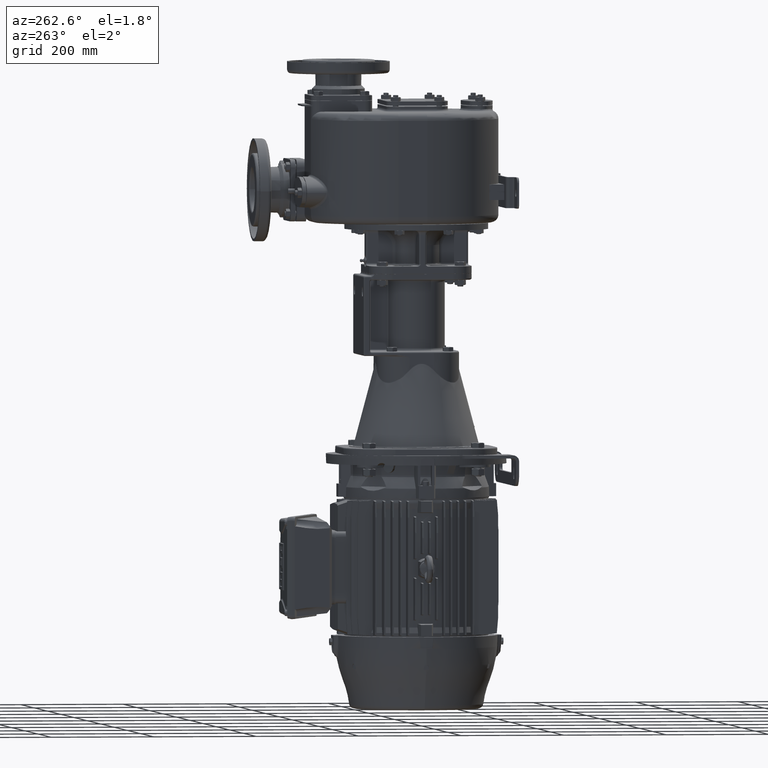
[diagram: clean part render]
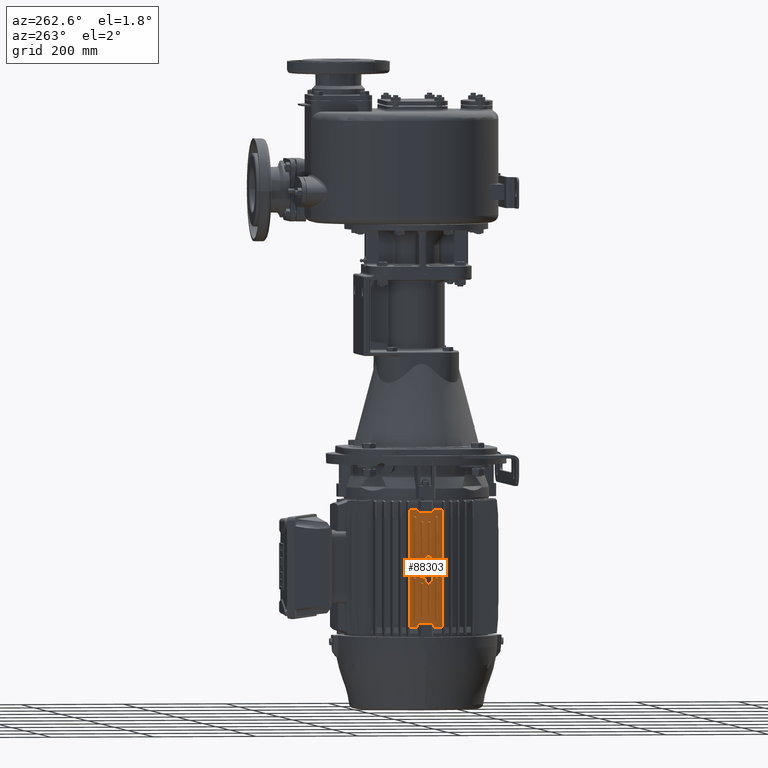
[diagram: same view with one face highlighted and labeled with its STEP entity id]
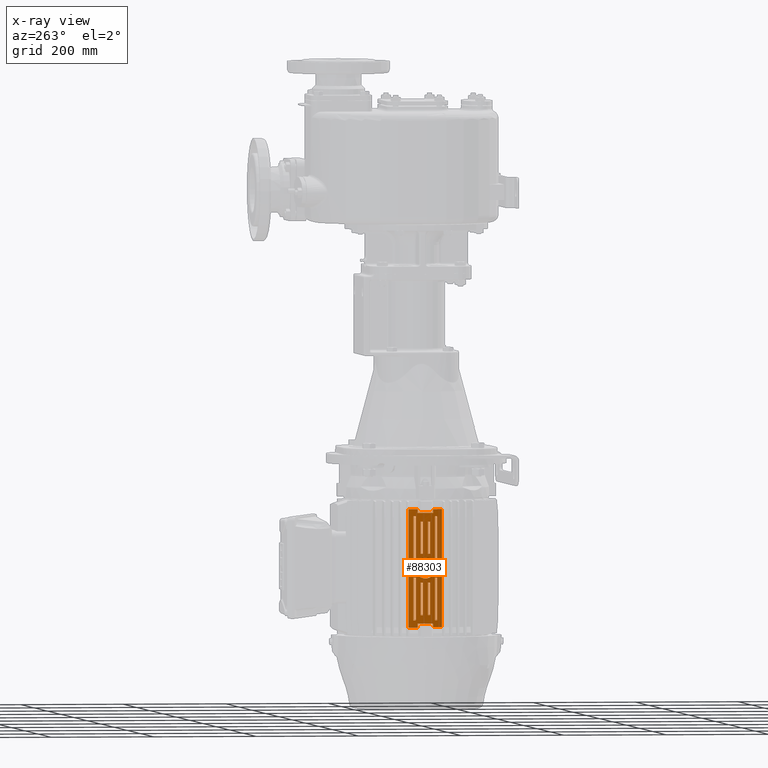
[diagram: x-ray of the same camera — body ghosted, the highlighted face saturated]
A machine part, auxiliary view. The second image highlights one B-rep face of the part: STEP entity #88303.
The next image is the same camera in x-ray: the body ghosted, the highlighted face saturated — about 0% of this face is hidden behind the body in this view.
In plain terms, the highlighted cylindrical surface (partial cylindrical patch) has radius 137 mm, axis along (0, 0, 1).
Its self-contained STEP definition (entity closure, byte-faithful):
#21=DIRECTION('',(0.E0,0.E0,-1.E0));
#22=VECTOR('',#21,2.289221418303E2);
#23=CARTESIAN_POINT('',(-1.330220107934E2,1.907741459763E2,-6.118389290849E2));
#24=LINE('',#23,#22);
#25=DIRECTION('',(-2.023414830802E-14,0.E0,1.E0));
#26=VECTOR('',#25,7.023203793346E0);
#27=CARTESIAN_POINT('',(-1.361447394983E2,1.732843026321E2,-6.188621328782E2));
#28=LINE('',#27,#26);
#29=CARTESIAN_POINT('',(-1.361447394983E2,1.427156973679E2,-6.188621328782E2));
#30=CARTESIAN_POINT('',(-1.367167040800E2,1.478104649119E2,-6.188120924614E2));
#31=CARTESIAN_POINT('',(-1.372832959200E2,1.58E2,-6.187625220985E2));
#32=CARTESIAN_POINT('',(-1.367167040800E2,1.681895350881E2,-6.188120924614E2));
#33=CARTESIAN_POINT('',(-1.361447394983E2,1.732843026321E2,-6.188621328782E2));
#35=DIRECTION('',(2.023414830802E-14,0.E0,-1.E0));
#36=VECTOR('',#35,7.023203793347E0);
#37=CARTESIAN_POINT('',(-1.361447394983E2,1.427156973679E2,-6.118389290849E2));
#38=LINE('',#37,#36);
#39=DIRECTION('',(0.E0,0.E0,1.E0));
#40=VECTOR('',#39,2.289221418303E2);
#41=CARTESIAN_POINT('',(-1.330220107934E2,1.252258540238E2,-8.407610709151E2));
#42=LINE('',#41,#40);
#43=DIRECTION('',(0.E0,0.E0,-1.E0));
#44=VECTOR('',#43,7.023203793346E0);
#45=CARTESIAN_POINT('',(-1.361447394983E2,1.427156973679E2,-8.337378671218E2));
#46=LINE('',#45,#44);
#47=DIRECTION('',(0.E0,0.E0,1.E0));
#48=VECTOR('',#47,7.023203793346E0);
#49=CARTESIAN_POINT('',(-1.361447394983E2,1.732843026321E2,-8.407610709151E2));
#50=LINE('',#49,#48);
#51=DIRECTION('',(0.E0,0.E0,1.E0));
#52=VECTOR('',#51,8.285613152792E1);
#53=CARTESIAN_POINT('',(-1.357120990618E2,1.392589709932E2,-8.269572233378E2));
#54=LINE('',#53,#52);
#55=DIRECTION('',(0.E0,0.E0,-1.E0));
#56=VECTOR('',#55,8.291642819502E1);
#57=CARTESIAN_POINT('',(-1.350229050032E2,1.348091586076E2,-7.440407951428E2));
#58=LINE('',#57,#56);
#59=CARTESIAN_POINT('',(-1.357120990618E2,1.392589709932E2,-7.441010918099E2));
#60=CARTESIAN_POINT('',(-1.355067429069E2,1.377718960393E2,-7.440831254744E2));
#61=CARTESIAN_POINT('',(-1.352770106268E2,1.362886253888E2,-7.440630265042E2));
#62=CARTESIAN_POINT('',(-1.350229050032E2,1.348091586076E2,-7.440407951428E2));
#64=DIRECTION('',(0.E0,0.E0,1.E0));
#65=VECTOR('',#64,8.291642819502E1);
#66=CARTESIAN_POINT('',(-1.350229050032E2,1.811908413924E2,-8.269572233378E2));
#67=LINE('',#66,#65);
#68=DIRECTION('',(0.E0,0.E0,-1.E0));
#69=VECTOR('',#68,8.285613152792E1);
#70=CARTESIAN_POINT('',(-1.357120990618E2,1.767410290068E2,-7.441010918099E2));
#71=LINE('',#70,#69);
#72=CARTESIAN_POINT('',(-1.350229050032E2,1.811908413924E2,-7.440407951428E2));
#73=CARTESIAN_POINT('',(-1.352770106268E2,1.797113746112E2,-7.440630265042E2));
#74=CARTESIAN_POINT('',(-1.355067429069E2,1.782281039607E2,-7.440831254744E2));
#75=CARTESIAN_POINT('',(-1.357120990618E2,1.767410290068E2,-7.441010918099E2));
#77=DIRECTION('',(0.E0,0.E0,1.E0));
#78=VECTOR('',#77,6.277065599945E1);
#79=CARTESIAN_POINT('',(-1.366890888229E2,1.672245865363E2,-8.169572233378E2));
#80=LINE('',#79,#78);
#81=DIRECTION('',(0.E0,0.E0,-1.E0));
#82=VECTOR('',#81,6.275077700786E1);
#83=CARTESIAN_POINT('',(-1.369163067365E2,1.627880005883E2,-7.542064463300E2));
#84=LINE('',#83,#82);
#85=CARTESIAN_POINT('',(-1.366890888229E2,1.672245865363E2,-7.541865673384E2));
#86=CARTESIAN_POINT('',(-1.367888076449E2,1.657469620524E2,-7.541952916049E2));
#87=CARTESIAN_POINT('',(-1.368645472534E2,1.642681000855E2,-7.542019179620E2));
#88=CARTESIAN_POINT('',(-1.369163067365E2,1.627880005883E2,-7.542064463300E2));
#90=DIRECTION('',(0.E0,0.E0,1.E0));
#91=VECTOR('',#90,6.275077700786E1);
#92=CARTESIAN_POINT('',(-1.369163067365E2,1.532119994117E2,-8.169572233378E2));
#93=LINE('',#92,#91);
#94=DIRECTION('',(0.E0,0.E0,-1.E0));
#95=VECTOR('',#94,6.277065599945E1);
#96=CARTESIAN_POINT('',(-1.366890888229E2,1.487754134637E2,-7.541865673384E2));
#97=LINE('',#96,#95);
#98=CARTESIAN_POINT('',(-1.369163067365E2,1.532119994117E2,-7.542064463300E2));
#99=CARTESIAN_POINT('',(-1.368645472534E2,1.517318999146E2,-7.542019179620E2));
#100=CARTESIAN_POINT('',(-1.367888076449E2,1.502530379476E2,-7.541952916049E2));
#101=CARTESIAN_POINT('',(-1.366890888229E2,1.487754134637E2,-7.541865673384E2));
#103=DIRECTION('',(0.E0,0.E0,-1.E0));
#104=VECTOR('',#103,8.291642819502E1);
#105=CARTESIAN_POINT('',(-1.350229050032E2,1.348091586076E2,-6.256427766622E2));
#106=LINE('',#105,#104);
#107=DIRECTION('',(0.E0,0.E0,1.E0));
#108=VECTOR('',#107,8.285613152792E1);
#109=CARTESIAN_POINT('',(-1.357120990618E2,1.392589709932E2,-7.084989081901E2));
#110=LINE('',#109,#108);
#111=CARTESIAN_POINT('',(-1.350229050032E2,1.348091586076E2,-7.085592048572E2));
#112=CARTESIAN_POINT('',(-1.352770106268E2,1.362886253888E2,-7.085369734958E2));
#113=CARTESIAN_POINT('',(-1.355067429069E2,1.377718960393E2,-7.085168745256E2));
#114=CARTESIAN_POINT('',(-1.357120990618E2,1.392589709932E2,-7.084989081901E2));
#116=DIRECTION('',(0.E0,0.E0,-1.E0));
#117=VECTOR('',#116,6.277065599945E1);
#118=CARTESIAN_POINT('',(-1.366890888229E2,1.487754134637E2,-6.356427766622E2));
#119=LINE('',#118,#117);
#120=DIRECTION('',(0.E0,0.E0,1.E0));
#121=VECTOR('',#120,6.275077700786E1);
#122=CARTESIAN_POINT('',(-1.369163067365E2,1.532119994117E2,-6.983935536700E2));
#123=LINE('',#122,#121);
#124=CARTESIAN_POINT('',(-1.366890888229E2,1.487754134637E2,-6.984134326616E2));
#125=CARTESIAN_POINT('',(-1.367888076449E2,1.502530379476E2,-6.984047083951E2));
#126=CARTESIAN_POINT('',(-1.368645472534E2,1.517318999146E2,-6.983980820380E2));
#127=CARTESIAN_POINT('',(-1.369163067365E2,1.532119994117E2,-6.983935536700E2));
#129=DIRECTION('',(0.E0,0.E0,-1.E0));
#130=VECTOR('',#129,6.275077700786E1);
#131=CARTESIAN_POINT('',(-1.369163067365E2,1.627880005883E2,-6.356427766622E2));
#132=LINE('',#131,#130);
#133=DIRECTION('',(0.E0,0.E0,1.E0));
#134=VECTOR('',#133,6.277065599945E1);
#135=CARTESIAN_POINT('',(-1.366890888229E2,1.672245865363E2,-6.984134326616E2));
#136=LINE('',#135,#134);
#137=CARTESIAN_POINT('',(-1.369163067365E2,1.627880005883E2,-6.983935536700E2));
#138=CARTESIAN_POINT('',(-1.368645472534E2,1.642681000855E2,-6.983980820380E2));
#139=CARTESIAN_POINT('',(-1.367888076449E2,1.657469620524E2,-6.984047083951E2));
#140=CARTESIAN_POINT('',(-1.366890888229E2,1.672245865363E2,-6.984134326616E2));
#142=DIRECTION('',(0.E0,0.E0,-1.E0));
#143=VECTOR('',#142,8.285613152792E1);
#144=CARTESIAN_POINT('',(-1.357120990618E2,1.767410290068E2,-6.256427766622E2));
#145=LINE('',#144,#143);
#146=DIRECTION('',(0.E0,0.E0,1.E0));
#147=VECTOR('',#146,8.291642819502E1);
#148=CARTESIAN_POINT('',(-1.350229050032E2,1.811908413924E2,-7.085592048572E2));
#149=LINE('',#148,#147);
#150=CARTESIAN_POINT('',(-1.357120990618E2,1.767410290068E2,-7.084989081901E2));
#151=CARTESIAN_POINT('',(-1.355067429069E2,1.782281039607E2,-7.085168745256E2));
#152=CARTESIAN_POINT('',(-1.352770106268E2,1.797113746112E2,-7.085369734958E2));
#153=CARTESIAN_POINT('',(-1.350229050032E2,1.811908413924E2,-7.085592048572E2));
#155=DIRECTION('',(0.E0,0.E0,1.E0));
#156=VECTOR('',#155,2.726930219427E1);
#157=CARTESIAN_POINT('',(-1.362672666258E2,1.721503373219E2,-7.399346510971E2));
#158=LINE('',#157,#156);
#159=DIRECTION('',(0.E0,0.E0,-1.E0));
#160=VECTOR('',#159,2.726930219399E1);
#161=CARTESIAN_POINT('',(-1.362672666258E2,1.438496626781E2,-7.126653489030E2));
#162=LINE('',#161,#160);
#12116=CARTESIAN_POINT('',(-5.961973914738E-13,1.58E2,-8.407610709151E2));
#12117=DIRECTION('',(0.E0,0.E0,-1.E0));
#12118=DIRECTION('',(-9.937572226151E-1,1.115642527890E-1,0.E0));
#12119=AXIS2_PLACEMENT_3D('',#12116,#12117,#12118);
#12121=CARTESIAN_POINT('',(-1.361447394983E2,1.427156973679E2,
-8.337378671218E2));
#12122=CARTESIAN_POINT('',(-1.367167040800E2,1.478104649119E2,
-8.337879075386E2));
#12123=CARTESIAN_POINT('',(-1.372832959200E2,1.58E2,-8.338374779015E2));
#12124=CARTESIAN_POINT('',(-1.367167040800E2,1.681895350881E2,
-8.337879075386E2));
#12125=CARTESIAN_POINT('',(-1.361447394983E2,1.732843026321E2,
-8.337378671218E2));
#12144=CARTESIAN_POINT('',(-1.361447394983E2,1.427156973679E2,
-8.407610709151E2));
#12150=CARTESIAN_POINT('',(-5.961973914738E-13,1.58E2,-8.407610709151E2));
#12151=DIRECTION('',(0.E0,0.E0,-1.E0));
#12152=DIRECTION('',(-9.709635824338E-1,-2.392273428923E-1,0.E0));
#12153=AXIS2_PLACEMENT_3D('',#12150,#12151,#12152);
#12430=CARTESIAN_POINT('',(-3.085207949685E-13,1.58E2,-6.118389290849E2));
#12431=DIRECTION('',(0.E0,0.E0,1.E0));
#12432=DIRECTION('',(-9.937572226151E-1,-1.115642527890E-1,0.E0));
#12433=AXIS2_PLACEMENT_3D('',#12430,#12431,#12432);
#12454=CARTESIAN_POINT('',(-3.085207949685E-13,1.58E2,-6.118389290849E2));
#12455=DIRECTION('',(0.E0,0.E0,1.E0));
#12456=DIRECTION('',(-9.709635824338E-1,2.392273428924E-1,0.E0));
#12457=AXIS2_PLACEMENT_3D('',#12454,#12455,#12456);
#75886=CARTESIAN_POINT('',(-5.788506907224E-13,1.58E2,-8.269572233378E2));
#75887=DIRECTION('',(0.E0,0.E0,1.E0));
#75888=DIRECTION('',(-9.905992632250E-1,-1.367958321666E-1,0.E0));
#75889=AXIS2_PLACEMENT_3D('',#75886,#75887,#75888);
#75942=CARTESIAN_POINT('',(-5.788506907224E-13,1.58E2,-8.269572233378E2));
#75943=DIRECTION('',(0.E0,0.E0,1.E0));
#75944=DIRECTION('',(-9.855686496587E-1,1.692762145428E-1,0.E0));
#75945=AXIS2_PLACEMENT_3D('',#75942,#75943,#75944);
#75953=CARTESIAN_POINT('',(-1.350229050032E2,1.811908413924E2,
-8.269572233378E2));
#76004=CARTESIAN_POINT('',(-5.662841213986E-13,1.58E2,-8.169572233378E2));
#76005=DIRECTION('',(0.E0,0.E0,1.E0));
#76006=DIRECTION('',(-9.977305753496E-1,6.733274844030E-2,0.E0));
#76007=AXIS2_PLACEMENT_3D('',#76004,#76005,#76006);
#76075=CARTESIAN_POINT('',(-5.662841213986E-13,1.58E2,-8.169572233378E2));
#76076=DIRECTION('',(0.E0,0.E0,1.E0));
#76077=DIRECTION('',(-9.993891002665E-1,-3.494890940361E-2,0.E0));
#76078=AXIS2_PLACEMENT_3D('',#76075,#76076,#76077);
#76128=CARTESIAN_POINT('',(-1.357120990618E2,1.392589709932E2,
-6.256427766622E2));
#76135=CARTESIAN_POINT('',(-3.258674957199E-13,1.58E2,-6.256427766622E2));
#76136=DIRECTION('',(0.E0,0.E0,-1.E0));
#76137=DIRECTION('',(-9.855686496587E-1,-1.692762145428E-1,0.E0));
#76138=AXIS2_PLACEMENT_3D('',#76135,#76136,#76137);
#76197=CARTESIAN_POINT('',(-3.384340650437E-13,1.58E2,-6.356427766622E2));
#76198=DIRECTION('',(0.E0,0.E0,-1.E0));
#76199=DIRECTION('',(-9.977305753496E-1,-6.733274844030E-2,0.E0));
#76200=AXIS2_PLACEMENT_3D('',#76197,#76198,#76199);
#76261=CARTESIAN_POINT('',(-1.366890888229E2,1.672245865363E2,
-6.356427766622E2));
#76268=CARTESIAN_POINT('',(-3.384340650437E-13,1.58E2,-6.356427766622E2));
#76269=DIRECTION('',(0.E0,0.E0,-1.E0));
#76270=DIRECTION('',(-9.993891002665E-1,3.494890940366E-2,0.E0));
#76271=AXIS2_PLACEMENT_3D('',#76268,#76269,#76270);
#76329=CARTESIAN_POINT('',(-3.258674957199E-13,1.58E2,-6.256427766622E2));
#76330=DIRECTION('',(0.E0,0.E0,-1.E0));
#76331=DIRECTION('',(-9.905992632250E-1,1.367958321666E-1,0.E0));
#76332=AXIS2_PLACEMENT_3D('',#76329,#76330,#76331);
#76383=CARTESIAN_POINT('',(-1.362672666258E2,1.721503373219E2,
-7.126653489029E2));
#76662=CARTESIAN_POINT('',(-1.362672666258E2,1.438496626781E2,
-7.126653489030E2));
#76663=CARTESIAN_POINT('',(-1.362795629506E2,1.439680758671E2,
-7.125440075546E2));
#76664=CARTESIAN_POINT('',(-1.363041642713E2,1.442079892769E2,
-7.123044440861E2));
#76665=CARTESIAN_POINT('',(-1.363410307795E2,1.445772448774E2,
-7.119543335892E2));
#76666=CARTESIAN_POINT('',(-1.363777507153E2,1.449555232348E2,
-7.116138176448E2));
#76667=CARTESIAN_POINT('',(-1.364142267550E2,1.453425821031E2,
-7.112831163292E2));
#76668=CARTESIAN_POINT('',(-1.364503587751E2,1.457381374745E2,
-7.109624762975E2));
#76669=CARTESIAN_POINT('',(-1.364860487121E2,1.461419077972E2,
-7.106521256669E2));
#76670=CARTESIAN_POINT('',(-1.365211996612E2,1.465536028460E2,
-7.103522856912E2));
#76671=CARTESIAN_POINT('',(-1.365557164949E2,1.469729272727E2,
-7.100631673792E2));
#76672=CARTESIAN_POINT('',(-1.365895061242E2,1.473995810878E2,
-7.097849716984E2));
#76673=CARTESIAN_POINT('',(-1.366224775431E2,1.478332571060E2,
-7.095178912765E2));
#76674=CARTESIAN_POINT('',(-1.366545424349E2,1.482736457044E2,
-7.092621074674E2));
#76675=CARTESIAN_POINT('',(-1.366856153463E2,1.487204347247E2,
-7.090177909847E2));
#76676=CARTESIAN_POINT('',(-1.367156138439E2,1.491733090664E2,
-7.087851024986E2));
#76677=CARTESIAN_POINT('',(-1.367444587446E2,1.496319514636E2,
-7.085641925482E2));
#76678=CARTESIAN_POINT('',(-1.367720742977E2,1.500960428171E2,
-7.083552017293E2));
#76679=CARTESIAN_POINT('',(-1.367983883637E2,1.505652627126E2,
-7.081582608111E2));
#76680=CARTESIAN_POINT('',(-1.368233325569E2,1.510392895015E2,
-7.079734910195E2));
#76681=CARTESIAN_POINT('',(-1.368468424414E2,1.515178018702E2,
-7.078010038382E2));
#76682=CARTESIAN_POINT('',(-1.368688574231E2,1.520004741291E2,
-7.076409029180E2));
#76683=CARTESIAN_POINT('',(-1.368893212182E2,1.524869835626E2,
-7.074932816777E2));
#76684=CARTESIAN_POINT('',(-1.369081817862E2,1.529770079564E2,
-7.073582247645E2));
#76685=CARTESIAN_POINT('',(-1.369253913970E2,1.534702254176E2,
-7.072358084015E2));
#76686=CARTESIAN_POINT('',(-1.369409066985E2,1.539663145233E2,
-7.071261006457E2));
#76687=CARTESIAN_POINT('',(-1.369546887743E2,1.544649544148E2,
-7.070291616339E2));
#76688=CARTESIAN_POINT('',(-1.369667031891E2,1.549658247995E2,
-7.069450438336E2));
#76689=CARTESIAN_POINT('',(-1.369769200328E2,1.554686061203E2,
-7.068737922216E2));
#76690=CARTESIAN_POINT('',(-1.369853139487E2,1.559729800015E2,
-7.068154445077E2));
#76691=CARTESIAN_POINT('',(-1.369918640999E2,1.564786241366E2,
-7.067700317121E2));
#76692=CARTESIAN_POINT('',(-1.369965543335E2,1.569852207116E2,
-7.067375773027E2));
#76693=CARTESIAN_POINT('',(-1.369993730950E2,1.574924517813E2,
-7.067180980104E2));
#76694=CARTESIAN_POINT('',(-1.370003134527E2,1.580000001008E2,
-7.067116038063E2));
#76695=CARTESIAN_POINT('',(-1.369993730943E2,1.585075484070E2,
-7.067180980154E2));
#76696=CARTESIAN_POINT('',(-1.369965543324E2,1.590147794220E2,
-7.067375773104E2));
#76697=CARTESIAN_POINT('',(-1.369918641001E2,1.595213758067E2,
-7.067700317104E2));
#76698=CARTESIAN_POINT('',(-1.369853139546E2,1.600270195746E2,
-7.068154444670E2));
#76699=CARTESIAN_POINT('',(-1.369769200446E2,1.605313932314E2,
-7.068737921393E2));
#76700=CARTESIAN_POINT('',(-1.369667032042E2,1.610341745270E2,
-7.069450437285E2));
#76701=CARTESIAN_POINT('',(-1.369546887873E2,1.615350450909E2,
-7.070291615425E2));
#76702=CARTESIAN_POINT('',(-1.369409067082E2,1.620336851535E2,
-7.071261005773E2));
#76703=CARTESIAN_POINT('',(-1.369253914040E2,1.625297743732E2,
-7.072358083516E2));
#76704=CARTESIAN_POINT('',(-1.369081817907E2,1.630229919257E2,
-7.073582247327E2));
#76705=CARTESIAN_POINT('',(-1.368893212184E2,1.635130164345E2,
-7.074932816759E2));
#76706=CARTESIAN_POINT('',(-1.368688574190E2,1.639995259668E2,
-7.076409029473E2));
#76707=CARTESIAN_POINT('',(-1.368468424324E2,1.644821983196E2,
-7.078010039037E2));
#76708=CARTESIAN_POINT('',(-1.368233325515E2,1.649607106029E2,
-7.079734910598E2));
#76709=CARTESIAN_POINT('',(-1.367983883637E2,1.654347372850E2,
-7.081582608110E2));
#76710=CARTESIAN_POINT('',(-1.367720743026E2,1.659039570962E2,
-7.083552016925E2));
#76711=CARTESIAN_POINT('',(-1.367444587554E2,1.663680483585E2,
-7.085641924661E2));
#76712=CARTESIAN_POINT('',(-1.367156138597E2,1.668266906883E2,
-7.087851023774E2));
#76713=CARTESIAN_POINT('',(-1.366856153686E2,1.672795649453E2,
-7.090177908105E2));
#76714=CARTESIAN_POINT('',(-1.366545424631E2,1.677263538973E2,
-7.092621072438E2));
#76715=CARTESIAN_POINT('',(-1.366224775782E2,1.681667424208E2,
-7.095178909937E2));
#76716=CARTESIAN_POINT('',(-1.365895061541E2,1.686004185295E2,
-7.097849714531E2));
#76717=CARTESIAN_POINT('',(-1.365557165027E2,1.690270726340E2,
-7.100631673135E2));
#76718=CARTESIAN_POINT('',(-1.365211996569E2,1.694463972051E2,
-7.103522857264E2));
#76719=CARTESIAN_POINT('',(-1.364860487045E2,1.698580922908E2,
-7.106521257325E2));
#76720=CARTESIAN_POINT('',(-1.364503587676E2,1.702618626091E2,
-7.109624763635E2));
#76721=CARTESIAN_POINT('',(-1.364142267479E2,1.706574179733E2,
-7.112831163928E2));
#76722=CARTESIAN_POINT('',(-1.363777507088E2,1.710444768336E2,
-7.116138177049E2));
#76723=CARTESIAN_POINT('',(-1.363410307746E2,1.714227551724E2,
-7.119543336356E2));
#76724=CARTESIAN_POINT('',(-1.363041642701E2,1.717920107355E2,
-7.123044440985E2));
#76725=CARTESIAN_POINT('',(-1.362795629503E2,1.720319241361E2,
-7.125440075577E2));
#76726=CARTESIAN_POINT('',(-1.362672666258E2,1.721503373219E2,
-7.126653489029E2));
#76758=CARTESIAN_POINT('',(-1.362672666258E2,1.721503373219E2,
-7.399346510971E2));
#76759=CARTESIAN_POINT('',(-1.362795629506E2,1.720319241329E2,
-7.400559924456E2));
#76760=CARTESIAN_POINT('',(-1.363041642713E2,1.717920107231E2,
-7.402955559140E2));
#76761=CARTESIAN_POINT('',(-1.363410307795E2,1.714227551226E2,
-7.406456664109E2));
#76762=CARTESIAN_POINT('',(-1.363777507153E2,1.710444767651E2,
-7.409861823553E2));
#76763=CARTESIAN_POINT('',(-1.364142267550E2,1.706574178969E2,
-7.413168836709E2));
#76764=CARTESIAN_POINT('',(-1.364503587751E2,1.702618625254E2,
-7.416375237027E2));
#76765=CARTESIAN_POINT('',(-1.364860487121E2,1.698580922028E2,
-7.419478743332E2));
#76766=CARTESIAN_POINT('',(-1.365211996612E2,1.694463971539E2,
-7.422477143089E2));
#76767=CARTESIAN_POINT('',(-1.365557164949E2,1.690270727272E2,
-7.425368326209E2));
#76768=CARTESIAN_POINT('',(-1.365895061242E2,1.686004189121E2,
-7.428150283017E2));
#76769=CARTESIAN_POINT('',(-1.366224775431E2,1.681667428940E2,
-7.430821087236E2));
#76770=CARTESIAN_POINT('',(-1.366545424349E2,1.677263542955E2,
-7.433378925327E2));
#76771=CARTESIAN_POINT('',(-1.366856153463E2,1.672795652752E2,
-7.435822090154E2));
#76772=CARTESIAN_POINT('',(-1.367156138439E2,1.668266909335E2,
-7.438148975014E2));
#76773=CARTESIAN_POINT('',(-1.367444587446E2,1.663680485364E2,
-7.440358074518E2));
#76774=CARTESIAN_POINT('',(-1.367720742977E2,1.659039571829E2,
-7.442447982708E2));
#76775=CARTESIAN_POINT('',(-1.367983883637E2,1.654347372873E2,
-7.444417391889E2));
#76776=CARTESIAN_POINT('',(-1.368233325569E2,1.649607104984E2,
-7.446265089805E2));
#76777=CARTESIAN_POINT('',(-1.368468424414E2,1.644821981297E2,
-7.447989961619E2));
#76778=CARTESIAN_POINT('',(-1.368688574231E2,1.639995258708E2,
-7.449590970821E2));
#76779=CARTESIAN_POINT('',(-1.368893212182E2,1.635130164373E2,
-7.451067183224E2));
#76780=CARTESIAN_POINT('',(-1.369081817862E2,1.630229920435E2,
-7.452417752356E2));
#76781=CARTESIAN_POINT('',(-1.369253913970E2,1.625297745823E2,
-7.453641915985E2));
#76782=CARTESIAN_POINT('',(-1.369409066985E2,1.620336854766E2,
-7.454738993544E2));
#76783=CARTESIAN_POINT('',(-1.369546887743E2,1.615350455851E2,
-7.455708383662E2));
#76784=CARTESIAN_POINT('',(-1.369667031891E2,1.610341752004E2,
-7.456549561665E2));
#76785=CARTESIAN_POINT('',(-1.369769200328E2,1.605313938796E2,
-7.457262077785E2));
#76786=CARTESIAN_POINT('',(-1.369853139487E2,1.600270199984E2,
-7.457845554923E2));
#76787=CARTESIAN_POINT('',(-1.369918640999E2,1.595213758634E2,
-7.458299682879E2));
#76788=CARTESIAN_POINT('',(-1.369965543335E2,1.590147792883E2,
-7.458624226973E2));
#76789=CARTESIAN_POINT('',(-1.369993730950E2,1.585075482186E2,
-7.458819019896E2));
#76790=CARTESIAN_POINT('',(-1.370003134527E2,1.579999998992E2,
-7.458883961938E2));
#76791=CARTESIAN_POINT('',(-1.369993730943E2,1.574924515929E2,
-7.458819019846E2));
#76792=CARTESIAN_POINT('',(-1.369965543324E2,1.569852205780E2,
-7.458624226896E2));
#76793=CARTESIAN_POINT('',(-1.369918641001E2,1.564786241933E2,
-7.458299682896E2));
#76794=CARTESIAN_POINT('',(-1.369853139546E2,1.559729804253E2,
-7.457845555329E2));
#76795=CARTESIAN_POINT('',(-1.369769200446E2,1.554686067685E2,
-7.457262078607E2));
#76796=CARTESIAN_POINT('',(-1.369667032042E2,1.549658254730E2,
-7.456549562715E2));
#76797=CARTESIAN_POINT('',(-1.369546887873E2,1.544649549091E2,
-7.455708384574E2));
#76798=CARTESIAN_POINT('',(-1.369409067081E2,1.539663148465E2,
-7.454738994227E2));
#76799=CARTESIAN_POINT('',(-1.369253914040E2,1.534702256267E2,
-7.453641916484E2));
#76800=CARTESIAN_POINT('',(-1.369081817907E2,1.529770080742E2,
-7.452417752673E2));
#76801=CARTESIAN_POINT('',(-1.368893212184E2,1.524869835654E2,
-7.451067183241E2));
#76802=CARTESIAN_POINT('',(-1.368688574190E2,1.520004740331E2,
-7.449590970527E2));
#76803=CARTESIAN_POINT('',(-1.368468424324E2,1.515178016804E2,
-7.447989960962E2));
#76804=CARTESIAN_POINT('',(-1.368233325515E2,1.510392893971E2,
-7.446265089401E2));
#76805=CARTESIAN_POINT('',(-1.367983883637E2,1.505652627149E2,
-7.444417391889E2));
#76806=CARTESIAN_POINT('',(-1.367720743026E2,1.500960429037E2,
-7.442447983075E2));
#76807=CARTESIAN_POINT('',(-1.367444587554E2,1.496319516414E2,
-7.440358075338E2));
#76808=CARTESIAN_POINT('',(-1.367156138597E2,1.491733093116E2,
-7.438148976225E2));
#76809=CARTESIAN_POINT('',(-1.366856153686E2,1.487204350547E2,
-7.435822091894E2));
#76810=CARTESIAN_POINT('',(-1.366545424631E2,1.482736461027E2,
-7.433378927561E2));
#76811=CARTESIAN_POINT('',(-1.366224775782E2,1.478332575792E2,
-7.430821090062E2));
#76812=CARTESIAN_POINT('',(-1.365895061541E2,1.473995814704E2,
-7.428150285468E2));
#76813=CARTESIAN_POINT('',(-1.365557165027E2,1.469729273660E2,
-7.425368326864E2));
#76814=CARTESIAN_POINT('',(-1.365211996569E2,1.465536027949E2,
-7.422477142734E2));
#76815=CARTESIAN_POINT('',(-1.364860487045E2,1.461419077091E2,
-7.419478742673E2));
#76816=CARTESIAN_POINT('',(-1.364503587676E2,1.457381373909E2,
-7.416375236364E2));
#76817=CARTESIAN_POINT('',(-1.364142267479E2,1.453425820267E2,
-7.413168836071E2));
#76818=CARTESIAN_POINT('',(-1.363777507088E2,1.449555231664E2,
-7.409861822950E2));
#76819=CARTESIAN_POINT('',(-1.363410307746E2,1.445772448275E2,
-7.406456663643E2));
#76820=CARTESIAN_POINT('',(-1.363041642701E2,1.442079892645E2,
-7.402955559014E2));
#76821=CARTESIAN_POINT('',(-1.362795629503E2,1.439680758638E2,
-7.400559924421E2));
#76822=CARTESIAN_POINT('',(-1.362672666258E2,1.438496626781E2,
-7.399346510970E2));
#85098=VERTEX_POINT('',#76383);
#85509=VERTEX_POINT('',#12144);
#85737=CARTESIAN_POINT('',(-1.369163067365E2,1.627880005883E2,
-6.356427766622E2));
#85738=CARTESIAN_POINT('',(-1.369163067365E2,1.627880005883E2,
-6.983935536700E2));
#85739=VERTEX_POINT('',#85737);
#85740=VERTEX_POINT('',#85738);
#85741=VERTEX_POINT('',#76261);
#85742=CARTESIAN_POINT('',(-1.366890888229E2,1.672245865363E2,
-8.169572233378E2));
#85743=CARTESIAN_POINT('',(-1.366890888229E2,1.672245865363E2,
-7.541865673384E2));
#85744=VERTEX_POINT('',#85742);
#85745=VERTEX_POINT('',#85743);
#85746=CARTESIAN_POINT('',(-1.366890888229E2,1.672245865363E2,
-6.984134326616E2));
#85747=VERTEX_POINT('',#85746);
#85749=CARTESIAN_POINT('',(-1.366890888229E2,1.487754134637E2,
-6.984134326616E2));
#85751=VERTEX_POINT('',#85749);
#85756=CARTESIAN_POINT('',(-1.369163067365E2,1.532119994117E2,
-6.983935536700E2));
#85758=VERTEX_POINT('',#85756);
#85760=CARTESIAN_POINT('',(-1.366890888229E2,1.487754134637E2,
-6.356427766622E2));
#85761=VERTEX_POINT('',#85760);
#85762=CARTESIAN_POINT('',(-1.369163067365E2,1.627880005883E2,
-7.542064463300E2));
#85763=VERTEX_POINT('',#85762);
#85767=CARTESIAN_POINT('',(-1.369163067365E2,1.532119994117E2,
-8.169572233378E2));
#85768=CARTESIAN_POINT('',(-1.369163067365E2,1.532119994117E2,
-7.542064463300E2));
#85769=VERTEX_POINT('',#85767);
#85770=VERTEX_POINT('',#85768);
#85771=CARTESIAN_POINT('',(-1.366890888229E2,1.487754134637E2,
-7.541865673384E2));
#85772=CARTESIAN_POINT('',(-1.366890888229E2,1.487754134637E2,
-8.169572233378E2));
#85773=VERTEX_POINT('',#85771);
#85774=VERTEX_POINT('',#85772);
#85777=CARTESIAN_POINT('',(-1.369163067365E2,1.532119994117E2,
-6.356427766622E2));
#85778=VERTEX_POINT('',#85777);
#85781=CARTESIAN_POINT('',(-1.369163067365E2,1.627880005883E2,
-8.169572233378E2));
#85782=VERTEX_POINT('',#85781);
#85789=VERTEX_POINT('',#75953);
#85796=CARTESIAN_POINT('',(-1.350229050032E2,1.811908413924E2,
-7.085592048572E2));
#85797=CARTESIAN_POINT('',(-1.350229050032E2,1.811908413924E2,
-6.256427766622E2));
#85798=VERTEX_POINT('',#85796);
#85799=VERTEX_POINT('',#85797);
#85813=CARTESIAN_POINT('',(-1.357120990618E2,1.767410290068E2,
-7.441010918099E2));
#85814=CARTESIAN_POINT('',(-1.357120990618E2,1.767410290068E2,
-8.269572233378E2));
#85815=VERTEX_POINT('',#85813);
#85816=VERTEX_POINT('',#85814);
#85819=CARTESIAN_POINT('',(-1.357120990618E2,1.767410290068E2,
-6.256427766622E2));
#85820=CARTESIAN_POINT('',(-1.357120990618E2,1.767410290068E2,
-7.084989081901E2));
#85821=VERTEX_POINT('',#85819);
#85822=VERTEX_POINT('',#85820);
#85825=CARTESIAN_POINT('',(-1.350229050032E2,1.811908413924E2,
-7.440407951428E2));
#85826=VERTEX_POINT('',#85825);
#85829=CARTESIAN_POINT('',(-1.357120990618E2,1.392589709932E2,
-7.084989081901E2));
#85830=VERTEX_POINT('',#85829);
#85831=CARTESIAN_POINT('',(-1.350229050032E2,1.348091586076E2,
-7.440407951428E2));
#85832=VERTEX_POINT('',#85831);
#85833=CARTESIAN_POINT('',(-1.357120990618E2,1.392589709932E2,
-8.269572233378E2));
#85834=CARTESIAN_POINT('',(-1.350229050032E2,1.348091586076E2,
-8.269572233378E2));
#85835=VERTEX_POINT('',#85833);
#85836=VERTEX_POINT('',#85834);
#85838=CARTESIAN_POINT('',(-1.357120990618E2,1.392589709932E2,
-7.441010918099E2));
#85839=VERTEX_POINT('',#85838);
#85840=VERTEX_POINT('',#76128);
#85841=VERTEX_POINT('',#111);
#85842=CARTESIAN_POINT('',(-1.361447394983E2,1.427156973679E2,
-6.118389290849E2));
#85843=CARTESIAN_POINT('',(-1.330220107934E2,1.252258540238E2,
-6.118389290849E2));
#85844=VERTEX_POINT('',#85842);
#85845=VERTEX_POINT('',#85843);
#85846=CARTESIAN_POINT('',(-1.361447394983E2,1.427156973679E2,
-6.188621328782E2));
#85847=VERTEX_POINT('',#85846);
#85848=VERTEX_POINT('',#76662);
#85849=CARTESIAN_POINT('',(-1.350229050032E2,1.348091586076E2,
-6.256427766622E2));
#85850=VERTEX_POINT('',#85849);
#85851=VERTEX_POINT('',#33);
#85852=VERTEX_POINT('',#12121);
#85853=VERTEX_POINT('',#12125);
#85854=CARTESIAN_POINT('',(-1.361447394983E2,1.732843026321E2,
-6.118389290849E2));
#85855=VERTEX_POINT('',#85854);
#85856=CARTESIAN_POINT('',(-1.330220107934E2,1.907741459763E2,
-6.118389290849E2));
#85857=VERTEX_POINT('',#85856);
#85866=CARTESIAN_POINT('',(-1.361447394983E2,1.732843026321E2,
-8.407610709151E2));
#85867=CARTESIAN_POINT('',(-1.330220107934E2,1.907741459763E2,
-8.407610709151E2));
#85868=VERTEX_POINT('',#85866);
#85869=VERTEX_POINT('',#85867);
#85872=VERTEX_POINT('',#76758);
#85873=VERTEX_POINT('',#76822);
#85874=CARTESIAN_POINT('',(-1.330220107934E2,1.252258540238E2,
-8.407610709151E2));
#85875=VERTEX_POINT('',#85874);
#88185=CARTESIAN_POINT('',(-4.523590932211E-13,1.58E2,-7.263E2));
#88186=DIRECTION('',(0.E0,0.E0,1.E0));
#88187=DIRECTION('',(0.E0,-1.E0,0.E0));
#88188=AXIS2_PLACEMENT_3D('',#88185,#88186,#88187);
#88189=CYLINDRICAL_SURFACE('',#88188,1.37E2);
#88191=ORIENTED_EDGE('',*,*,#88190,.F.);
#88193=ORIENTED_EDGE('',*,*,#88192,.T.);
#88195=ORIENTED_EDGE('',*,*,#88194,.F.);
#88197=ORIENTED_EDGE('',*,*,#88196,.F.);
#88199=ORIENTED_EDGE('',*,*,#88198,.F.);
#88201=ORIENTED_EDGE('',*,*,#88200,.T.);
#88203=ORIENTED_EDGE('',*,*,#88202,.F.);
#88205=ORIENTED_EDGE('',*,*,#88204,.T.);
#88207=ORIENTED_EDGE('',*,*,#88206,.F.);
#88209=ORIENTED_EDGE('',*,*,#88208,.T.);
#88211=ORIENTED_EDGE('',*,*,#88210,.F.);
#88213=ORIENTED_EDGE('',*,*,#88212,.T.);
#88214=EDGE_LOOP('',(#88191,#88193,#88195,#88197,#88199,#88201,#88203,#88205,
#88207,#88209,#88211,#88213));
#88215=FACE_OUTER_BOUND('',#88214,.F.);
#88216=ORIENTED_EDGE('',*,*,#88150,.F.);
#88218=ORIENTED_EDGE('',*,*,#88217,.T.);
#88219=ORIENTED_EDGE('',*,*,#88175,.F.);
#88220=ORIENTED_EDGE('',*,*,#88129,.F.);
#88221=EDGE_LOOP('',(#88216,#88218,#88219,#88220));
#88222=FACE_BOUND('',#88221,.F.);
#88224=ORIENTED_EDGE('',*,*,#88223,.F.);
#88226=ORIENTED_EDGE('',*,*,#88225,.T.);
#88228=ORIENTED_EDGE('',*,*,#88227,.F.);
#88230=ORIENTED_EDGE('',*,*,#88229,.F.);
#88231=EDGE_LOOP('',(#88224,#88226,#88228,#88230));
#88232=FACE_BOUND('',#88231,.F.);
#88234=ORIENTED_EDGE('',*,*,#88233,.F.);
#88236=ORIENTED_EDGE('',*,*,#88235,.T.);
#88238=ORIENTED_EDGE('',*,*,#88237,.F.);
#88240=ORIENTED_EDGE('',*,*,#88239,.F.);
#88241=EDGE_LOOP('',(#88234,#88236,#88238,#88240));
#88242=FACE_BOUND('',#88241,.F.);
#88244=ORIENTED_EDGE('',*,*,#88243,.F.);
#88246=ORIENTED_EDGE('',*,*,#88245,.T.);
#88248=ORIENTED_EDGE('',*,*,#88247,.F.);
#88250=ORIENTED_EDGE('',*,*,#88249,.F.);
#88251=EDGE_LOOP('',(#88244,#88246,#88248,#88250));
#88252=FACE_BOUND('',#88251,.F.);
#88254=ORIENTED_EDGE('',*,*,#88253,.F.);
#88256=ORIENTED_EDGE('',*,*,#88255,.T.);
#88258=ORIENTED_EDGE('',*,*,#88257,.F.);
#88260=ORIENTED_EDGE('',*,*,#88259,.F.);
#88261=EDGE_LOOP('',(#88254,#88256,#88258,#88260));
#88262=FACE_BOUND('',#88261,.F.);
#88264=ORIENTED_EDGE('',*,*,#88263,.F.);
#88266=ORIENTED_EDGE('',*,*,#88265,.T.);
#88268=ORIENTED_EDGE('',*,*,#88267,.F.);
#88270=ORIENTED_EDGE('',*,*,#88269,.F.);
#88271=EDGE_LOOP('',(#88264,#88266,#88268,#88270));
#88272=FACE_BOUND('',#88271,.F.);
#88274=ORIENTED_EDGE('',*,*,#88273,.F.);
#88276=ORIENTED_EDGE('',*,*,#88275,.T.);
#88278=ORIENTED_EDGE('',*,*,#88277,.F.);
#88280=ORIENTED_EDGE('',*,*,#88279,.F.);
#88281=EDGE_LOOP('',(#88274,#88276,#88278,#88280));
#88282=FACE_BOUND('',#88281,.F.);
#88284=ORIENTED_EDGE('',*,*,#88283,.F.);
#88286=ORIENTED_EDGE('',*,*,#88285,.T.);
#88288=ORIENTED_EDGE('',*,*,#88287,.F.);
#88290=ORIENTED_EDGE('',*,*,#88289,.F.);
#88291=EDGE_LOOP('',(#88284,#88286,#88288,#88290));
#88292=FACE_BOUND('',#88291,.F.);
#88294=ORIENTED_EDGE('',*,*,#88293,.F.);
#88296=ORIENTED_EDGE('',*,*,#88295,.T.);
#88298=ORIENTED_EDGE('',*,*,#88297,.F.);
#88300=ORIENTED_EDGE('',*,*,#88299,.T.);
#88301=EDGE_LOOP('',(#88294,#88296,#88298,#88300));
#88302=FACE_BOUND('',#88301,.F.);
#88303=ADVANCED_FACE('',(#88215,#88222,#88232,#88242,#88252,#88262,#88272,
#88282,#88292,#88302),#88189,.T.);
#34=B_SPLINE_CURVE_WITH_KNOTS('',3,(#29,#30,#31,#32,#33),.UNSPECIFIED.,.F.,.F.,(
4,1,4),(0.E0,5.E-1,1.E0),.UNSPECIFIED.);
#63=B_SPLINE_CURVE_WITH_KNOTS('',3,(#59,#60,#61,#62),.UNSPECIFIED.,.F.,.F.,(4,
4),(0.E0,1.E0),.UNSPECIFIED.);
#76=B_SPLINE_CURVE_WITH_KNOTS('',3,(#72,#73,#74,#75),.UNSPECIFIED.,.F.,.F.,(4,
4),(0.E0,1.E0),.UNSPECIFIED.);
#89=B_SPLINE_CURVE_WITH_KNOTS('',3,(#85,#86,#87,#88),.UNSPECIFIED.,.F.,.F.,(4,
4),(0.E0,1.E0),.UNSPECIFIED.);
#102=B_SPLINE_CURVE_WITH_KNOTS('',3,(#98,#99,#100,#101),.UNSPECIFIED.,.F.,.F.,
(4,4),(0.E0,1.E0),.UNSPECIFIED.);
#115=B_SPLINE_CURVE_WITH_KNOTS('',3,(#111,#112,#113,#114),.UNSPECIFIED.,.F.,.F.,
(4,4),(0.E0,1.E0),.UNSPECIFIED.);
#128=B_SPLINE_CURVE_WITH_KNOTS('',3,(#124,#125,#126,#127),.UNSPECIFIED.,.F.,.F.,
(4,4),(0.E0,1.E0),.UNSPECIFIED.);
#141=B_SPLINE_CURVE_WITH_KNOTS('',3,(#137,#138,#139,#140),.UNSPECIFIED.,.F.,.F.,
(4,4),(0.E0,1.E0),.UNSPECIFIED.);
#154=B_SPLINE_CURVE_WITH_KNOTS('',3,(#150,#151,#152,#153),.UNSPECIFIED.,.F.,.F.,
(4,4),(0.E0,1.E0),.UNSPECIFIED.);
#12120=CIRCLE('',#12119,1.37E2);
#12126=B_SPLINE_CURVE_WITH_KNOTS('',3,(#12121,#12122,#12123,#12124,#12125),
.UNSPECIFIED.,.F.,.F.,(4,1,4),(0.E0,5.E-1,1.E0),.UNSPECIFIED.);
#12154=CIRCLE('',#12153,1.37E2);
#12434=CIRCLE('',#12433,1.37E2);
#12458=CIRCLE('',#12457,1.37E2);
#75890=CIRCLE('',#75889,1.37E2);
#75946=CIRCLE('',#75945,1.37E2);
#76008=CIRCLE('',#76007,1.37E2);
#76079=CIRCLE('',#76078,1.37E2);
#76139=CIRCLE('',#76138,1.37E2);
#76201=CIRCLE('',#76200,1.37E2);
#76272=CIRCLE('',#76271,1.37E2);
#76333=CIRCLE('',#76332,1.37E2);
#76727=B_SPLINE_CURVE_WITH_KNOTS('',3,(#76662,#76663,#76664,#76665,#76666,
#76667,#76668,#76669,#76670,#76671,#76672,#76673,#76674,#76675,#76676,#76677,
#76678,#76679,#76680,#76681,#76682,#76683,#76684,#76685,#76686,#76687,#76688,
#76689,#76690,#76691,#76692,#76693,#76694,#76695,#76696,#76697,#76698,#76699,
#76700,#76701,#76702,#76703,#76704,#76705,#76706,#76707,#76708,#76709,#76710,
#76711,#76712,#76713,#76714,#76715,#76716,#76717,#76718,#76719,#76720,#76721,
#76722,#76723,#76724,#76725,#76726),.UNSPECIFIED.,.F.,.F.,(4,1,1,1,1,1,1,1,1,1,
1,1,1,1,1,1,1,1,1,1,1,1,1,1,1,1,1,1,1,1,1,1,1,1,1,1,1,1,1,1,1,1,1,1,1,1,1,1,1,1,
1,1,1,1,1,1,1,1,1,1,1,1,4),(0.E0,1.612903225806E-2,3.225806451613E-2,
4.838709677419E-2,6.451612903226E-2,8.064516129032E-2,9.677419354839E-2,
1.129032258065E-1,1.290322580645E-1,1.451612903226E-1,1.612903225806E-1,
1.774193548387E-1,1.935483870968E-1,2.096774193548E-1,2.258064516129E-1,
2.419354838710E-1,2.580645161290E-1,2.741935483871E-1,2.903225806452E-1,
3.064516129032E-1,3.225806451613E-1,3.387096774194E-1,3.548387096774E-1,
3.709677419355E-1,3.870967741935E-1,4.032258064516E-1,4.193548387097E-1,
4.354838709677E-1,4.516129032258E-1,4.677419354839E-1,4.838709677419E-1,5.E-1,
5.161290322581E-1,5.322580645161E-1,5.483870967742E-1,5.645161290323E-1,
5.806451612903E-1,5.967741935484E-1,6.129032258065E-1,6.290322580645E-1,
6.451612903226E-1,6.612903225806E-1,6.774193548387E-1,6.935483870968E-1,
7.096774193548E-1,7.258064516129E-1,7.419354838710E-1,7.580645161290E-1,
7.741935483871E-1,7.903225806452E-1,8.064516129032E-1,8.225806451613E-1,
8.387096774194E-1,8.548387096774E-1,8.709677419355E-1,8.870967741935E-1,
9.032258064516E-1,9.193548387097E-1,9.354838709677E-1,9.516129032258E-1,
9.677419354839E-1,9.838709677419E-1,1.E0),.UNSPECIFIED.);
#76823=B_SPLINE_CURVE_WITH_KNOTS('',3,(#76758,#76759,#76760,#76761,#76762,
#76763,#76764,#76765,#76766,#76767,#76768,#76769,#76770,#76771,#76772,#76773,
#76774,#76775,#76776,#76777,#76778,#76779,#76780,#76781,#76782,#76783,#76784,
#76785,#76786,#76787,#76788,#76789,#76790,#76791,#76792,#76793,#76794,#76795,
#76796,#76797,#76798,#76799,#76800,#76801,#76802,#76803,#76804,#76805,#76806,
#76807,#76808,#76809,#76810,#76811,#76812,#76813,#76814,#76815,#76816,#76817,
#76818,#76819,#76820,#76821,#76822),.UNSPECIFIED.,.F.,.F.,(4,1,1,1,1,1,1,1,1,1,
1,1,1,1,1,1,1,1,1,1,1,1,1,1,1,1,1,1,1,1,1,1,1,1,1,1,1,1,1,1,1,1,1,1,1,1,1,1,1,1,
1,1,1,1,1,1,1,1,1,1,1,1,4),(0.E0,1.612903225806E-2,3.225806451613E-2,
4.838709677419E-2,6.451612903226E-2,8.064516129032E-2,9.677419354839E-2,
1.129032258065E-1,1.290322580645E-1,1.451612903226E-1,1.612903225806E-1,
1.774193548387E-1,1.935483870968E-1,2.096774193548E-1,2.258064516129E-1,
2.419354838710E-1,2.580645161290E-1,2.741935483871E-1,2.903225806452E-1,
3.064516129032E-1,3.225806451613E-1,3.387096774194E-1,3.548387096774E-1,
3.709677419355E-1,3.870967741935E-1,4.032258064516E-1,4.193548387097E-1,
4.354838709677E-1,4.516129032258E-1,4.677419354839E-1,4.838709677419E-1,5.E-1,
5.161290322581E-1,5.322580645161E-1,5.483870967742E-1,5.645161290323E-1,
5.806451612903E-1,5.967741935484E-1,6.129032258065E-1,6.290322580645E-1,
6.451612903226E-1,6.612903225806E-1,6.774193548387E-1,6.935483870968E-1,
7.096774193548E-1,7.258064516129E-1,7.419354838710E-1,7.580645161290E-1,
7.741935483871E-1,7.903225806452E-1,8.064516129032E-1,8.225806451613E-1,
8.387096774194E-1,8.548387096774E-1,8.709677419355E-1,8.870967741935E-1,
9.032258064516E-1,9.193548387097E-1,9.354838709677E-1,9.516129032258E-1,
9.677419354839E-1,9.838709677419E-1,1.E0),.UNSPECIFIED.);
#88129=EDGE_CURVE('',#85839,#85832,#63,.T.);
#88150=EDGE_CURVE('',#85835,#85839,#54,.T.);
#88175=EDGE_CURVE('',#85832,#85836,#58,.T.);
#88190=EDGE_CURVE('',#85857,#85869,#24,.T.);
#88192=EDGE_CURVE('',#85857,#85855,#12458,.T.);
#88194=EDGE_CURVE('',#85851,#85855,#28,.T.);
#88196=EDGE_CURVE('',#85847,#85851,#34,.T.);
#88198=EDGE_CURVE('',#85844,#85847,#38,.T.);
#88200=EDGE_CURVE('',#85844,#85845,#12434,.T.);
#88202=EDGE_CURVE('',#85875,#85845,#42,.T.);
#88204=EDGE_CURVE('',#85875,#85509,#12154,.T.);
#88206=EDGE_CURVE('',#85852,#85509,#46,.T.);
#88208=EDGE_CURVE('',#85852,#85853,#12126,.T.);
#88210=EDGE_CURVE('',#85868,#85853,#50,.T.);
#88212=EDGE_CURVE('',#85868,#85869,#12120,.T.);
#88217=EDGE_CURVE('',#85835,#85836,#75890,.T.);
#88223=EDGE_CURVE('',#85789,#85826,#67,.T.);
#88225=EDGE_CURVE('',#85789,#85816,#75946,.T.);
#88227=EDGE_CURVE('',#85815,#85816,#71,.T.);
#88229=EDGE_CURVE('',#85826,#85815,#76,.T.);
#88233=EDGE_CURVE('',#85744,#85745,#80,.T.);
#88235=EDGE_CURVE('',#85744,#85782,#76008,.T.);
#88237=EDGE_CURVE('',#85763,#85782,#84,.T.);
#88239=EDGE_CURVE('',#85745,#85763,#89,.T.);
#88243=EDGE_CURVE('',#85769,#85770,#93,.T.);
#88245=EDGE_CURVE('',#85769,#85774,#76079,.T.);
#88247=EDGE_CURVE('',#85773,#85774,#97,.T.);
#88249=EDGE_CURVE('',#85770,#85773,#102,.T.);
#88253=EDGE_CURVE('',#85850,#85841,#106,.T.);
#88255=EDGE_CURVE('',#85850,#85840,#76139,.T.);
#88257=EDGE_CURVE('',#85830,#85840,#110,.T.);
#88259=EDGE_CURVE('',#85841,#85830,#115,.T.);
#88263=EDGE_CURVE('',#85761,#85751,#119,.T.);
#88265=EDGE_CURVE('',#85761,#85778,#76201,.T.);
#88267=EDGE_CURVE('',#85758,#85778,#123,.T.);
#88269=EDGE_CURVE('',#85751,#85758,#128,.T.);
#88273=EDGE_CURVE('',#85739,#85740,#132,.T.);
#88275=EDGE_CURVE('',#85739,#85741,#76272,.T.);
#88277=EDGE_CURVE('',#85747,#85741,#136,.T.);
#88279=EDGE_CURVE('',#85740,#85747,#141,.T.);
#88283=EDGE_CURVE('',#85821,#85822,#145,.T.);
#88285=EDGE_CURVE('',#85821,#85799,#76333,.T.);
#88287=EDGE_CURVE('',#85798,#85799,#149,.T.);
#88289=EDGE_CURVE('',#85822,#85798,#154,.T.);
#88293=EDGE_CURVE('',#85872,#85098,#158,.T.);
#88295=EDGE_CURVE('',#85872,#85873,#76823,.T.);
#88297=EDGE_CURVE('',#85848,#85873,#162,.T.);
#88299=EDGE_CURVE('',#85848,#85098,#76727,.T.);